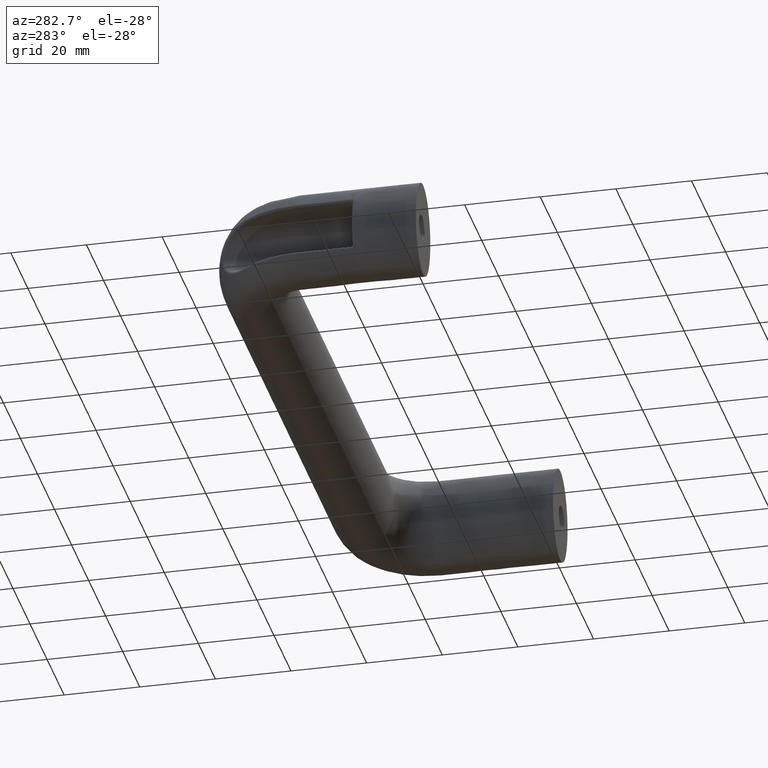
[diagram: clean part render]
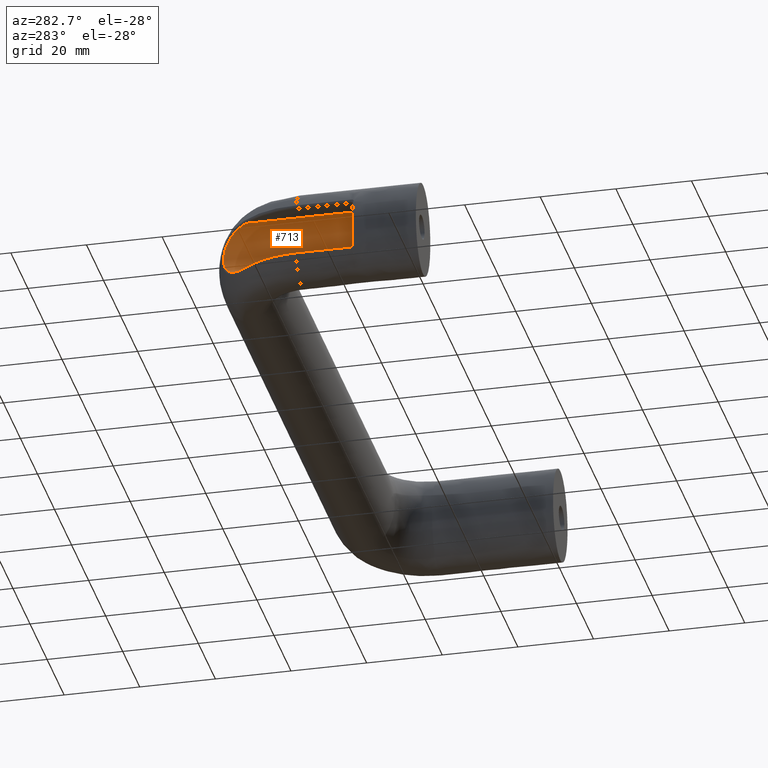
[diagram: same view with one face highlighted and labeled with its STEP entity id]
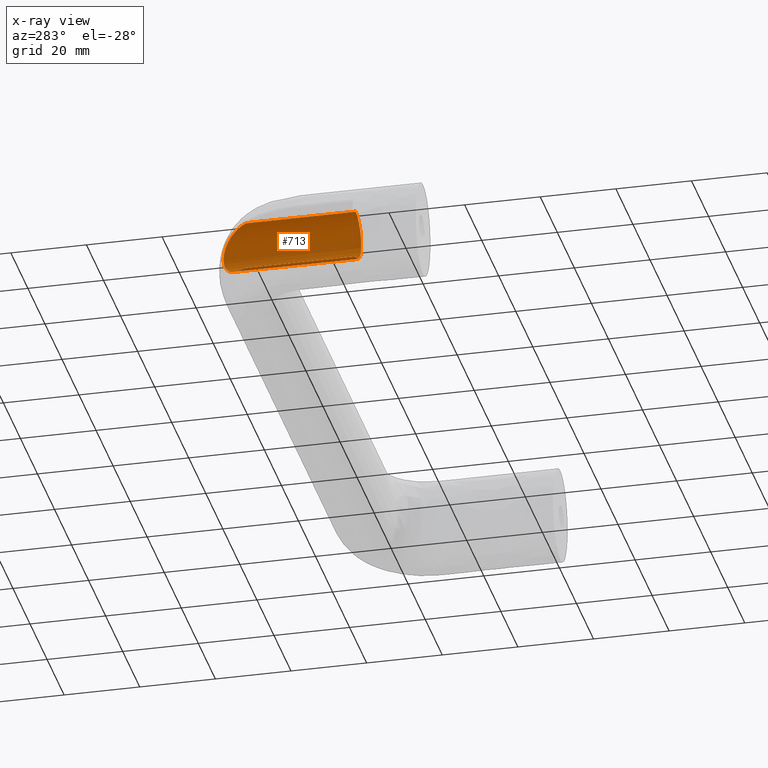
[diagram: x-ray of the same camera — body ghosted, the highlighted face saturated]
A machine part, auxiliary view. The second image highlights one B-rep face of the part: STEP entity #713.
The next image is the same camera in x-ray: the body ghosted, the highlighted face saturated — about 0% of this face is hidden behind the body in this view.
In plain terms, the highlighted cylindrical surface (edge-blend (fillet) strip) has radius 6.5 mm, axis along (0, -1, 0).
Its self-contained STEP definition (entity closure, byte-faithful):
#51=CYLINDRICAL_SURFACE('',#799,6.5);
#71=LINE('',#1845,#93);
#72=LINE('',#1846,#94);
#93=VECTOR('',#985,29.0082159809616);
#94=VECTOR('',#986,29.0082159809616);
#150=CIRCLE('',#792,6.5);
#206=FACE_OUTER_BOUND('',#270,.T.);
#270=EDGE_LOOP('',(#639,#640,#641,#642));
#296=B_SPLINE_CURVE_WITH_KNOTS('',3,(#1718,#1719,#1720,#1721,#1722,#1723,
#1724,#1725,#1726,#1727,#1728),.UNSPECIFIED.,.F.,.F.,(4,1,1,1,1,1,1,1,4),
(1.97566462335093E-11,0.391019060009875,0.782038119999993,1.17305717999011,
1.36856670998517,1.56407623998023,1.95509529997035,2.34611435996047,2.73713341995059),
 .UNSPECIFIED.);
#362=VERTEX_POINT('',#1625);
#364=VERTEX_POINT('',#1704);
#368=VERTEX_POINT('',#1776);
#369=VERTEX_POINT('',#1780);
#450=EDGE_CURVE('',#362,#364,#296,.T.);
#459=EDGE_CURVE('',#369,#368,#150,.T.);
#466=EDGE_CURVE('',#362,#368,#71,.T.);
#467=EDGE_CURVE('',#364,#369,#72,.T.);
#639=ORIENTED_EDGE('',*,*,#450,.F.);
#640=ORIENTED_EDGE('',*,*,#466,.T.);
#641=ORIENTED_EDGE('',*,*,#459,.F.);
#642=ORIENTED_EDGE('',*,*,#467,.F.);
#713=ADVANCED_FACE('',(#206),#51,.F.);
#792=AXIS2_PLACEMENT_3D('',#1782,#968,#969);
#799=AXIS2_PLACEMENT_3D('',#1844,#983,#984);
#968=DIRECTION('center_axis',(0.,1.,0.));
#969=DIRECTION('ref_axis',(1.,0.,6.12323399573677E-17));
#983=DIRECTION('center_axis',(0.,-1.,0.));
#984=DIRECTION('ref_axis',(0.,0.,1.));
#985=DIRECTION('',(0.,-1.,0.));
#986=DIRECTION('',(0.,-1.,0.));
#1625=CARTESIAN_POINT('',(-1.50000000008957,46.5082159809616,-6.49999999999999));
#1704=CARTESIAN_POINT('',(-1.50000000008316,46.5082159809616,6.50000000000001));
#1718=CARTESIAN_POINT('Ctrl Pts',(-1.50000000015187,46.5082159809809,-6.49999999999999));
#1719=CARTESIAN_POINT('Ctrl Pts',(-0.740484069630446,47.5230150583374,-6.50000000001773));
#1720=CARTESIAN_POINT('Ctrl Pts',(0.848563040851631,49.4955280680216,-6.231264178356));
#1721=CARTESIAN_POINT('Ctrl Pts',(3.21658449368064,52.1176112882074,-4.79946657974051));
#1722=CARTESIAN_POINT('Ctrl Pts',(4.73670226692942,53.6370439527362,-2.43009284032232));
#1723=CARTESIAN_POINT('Ctrl Pts',(5.08756426515796,53.9765494907349,-0.00123748057260408));
#1724=CARTESIAN_POINT('Ctrl Pts',(4.73843651730741,53.6382775960616,2.4228706329368));
#1725=CARTESIAN_POINT('Ctrl Pts',(3.21514427704334,52.1166731182363,4.80630836727026));
#1726=CARTESIAN_POINT('Ctrl Pts',(0.848953504901573,49.4959460035145,6.23014908500995));
#1727=CARTESIAN_POINT('Ctrl Pts',(-0.740484069645112,47.5230150583187,6.50000000001944));
#1728=CARTESIAN_POINT('Ctrl Pts',(-1.5000000001663,46.5082159809616,6.50000000000001));
#1776=CARTESIAN_POINT('',(-1.50000000000002,17.5,-6.49999999999999));
#1780=CARTESIAN_POINT('',(-1.50000000000002,17.5,6.50000000000001));
#1782=CARTESIAN_POINT('Origin',(-1.50000000000002,17.5,9.88987619257135E-15));
#1844=CARTESIAN_POINT('Origin',(-1.50000000000002,57.,9.88987619257135E-15));
#1845=CARTESIAN_POINT('',(-1.50000000000002,57.,-6.49999999999999));
#1846=CARTESIAN_POINT('',(-1.50000000000002,57.,6.50000000000001));